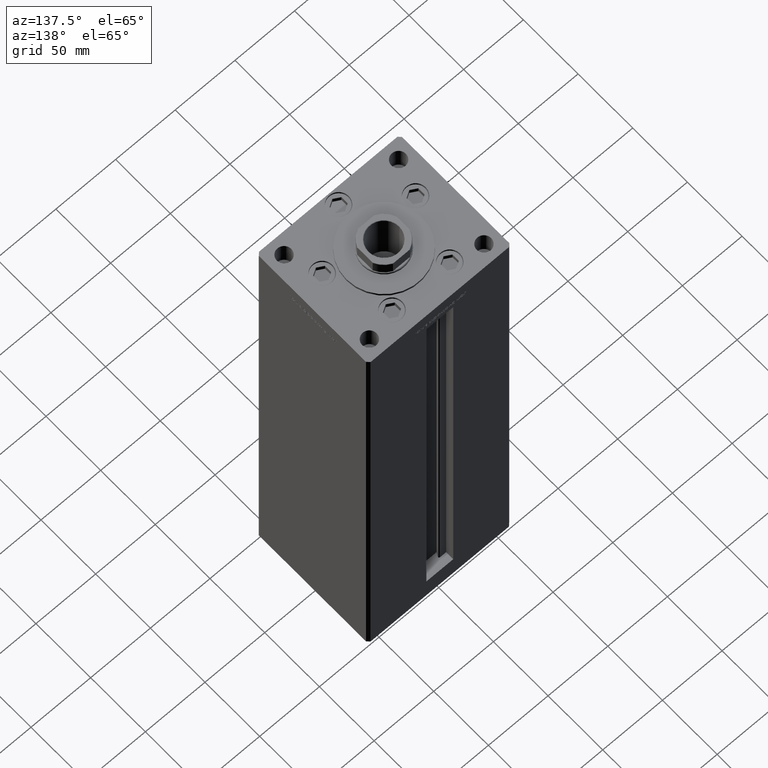
[diagram: clean part render]
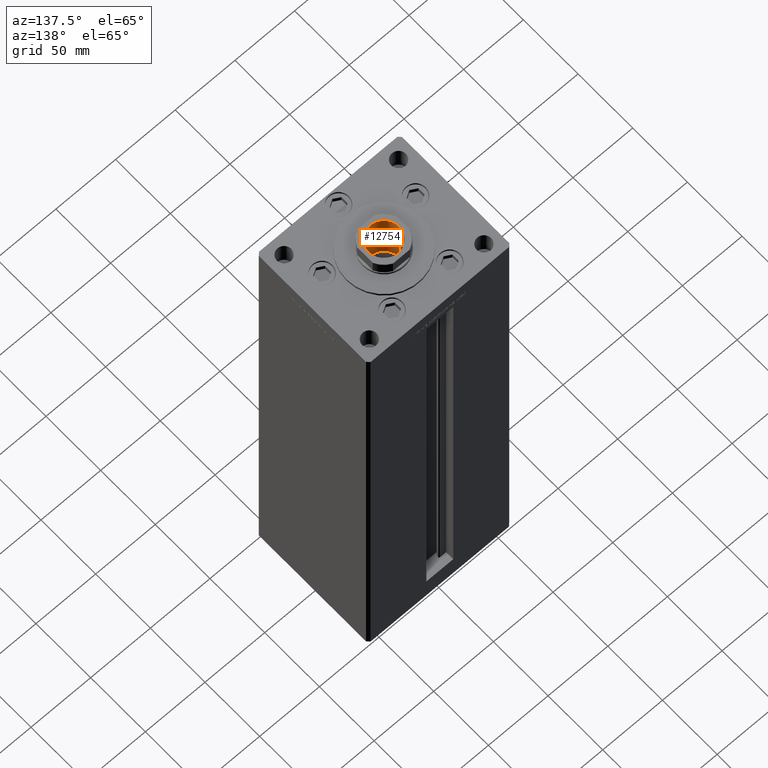
[diagram: same view with one face highlighted and labeled with its STEP entity id]
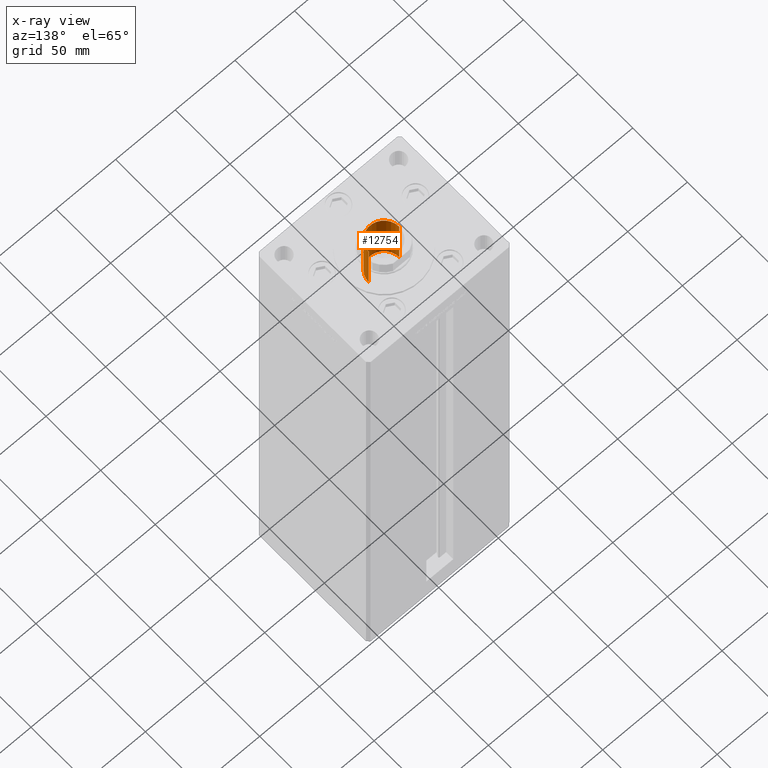
[diagram: x-ray of the same camera — body ghosted, the highlighted face saturated]
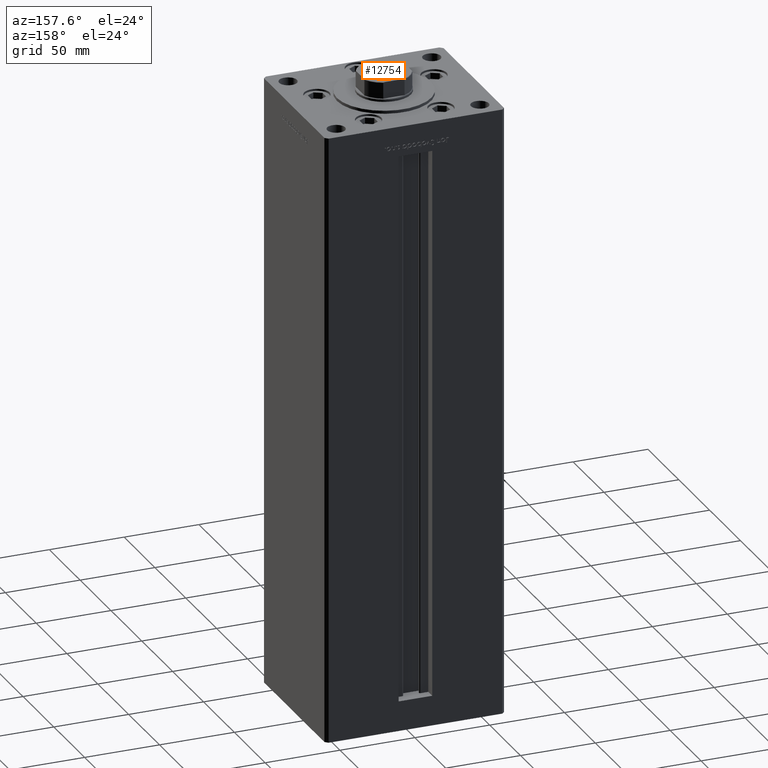
[diagram: same view with one face highlighted and labeled with its STEP entity id]
A machine part, auxiliary view. The second image highlights one B-rep face of the part: STEP entity #12754.
The next image is the same camera in x-ray: the body ghosted, the highlighted face saturated — about 0% of this face is hidden behind the body in this view.
A second angle (auxiliary view) of the same face is appended — the face is thin or edge-on in the first view.
In plain terms, the highlighted cylindrical surface (edge-blend (fillet) strip) has radius 12.75 mm, axis along (0, 0, 1).
Its self-contained STEP definition (entity closure, byte-faithful):
#1773 = CARTESIAN_POINT ( 'NONE',  ( -12.74999999999999467, 1.561424668912874519E-15, 389.2500000000000000 ) ) ;
#3592 = EDGE_CURVE ( 'NONE', #18716, #14563, #41292, .T. ) ;
#4118 = ORIENTED_EDGE ( 'NONE', *, *, #49170, .F. ) ;
#4862 = CARTESIAN_POINT ( 'NONE',  ( 0.000000000000000000, 0.000000000000000000, 389.2500000000000000 ) ) ;
#8751 = CARTESIAN_POINT ( 'NONE',  ( 0.000000000000000000, 0.000000000000000000, 388.9499999999999318 ) ) ;
#9095 = DIRECTION ( 'NONE',  ( -0.000000000000000000, -0.000000000000000000, 1.000000000000000000 ) ) ;
#9749 = AXIS2_PLACEMENT_3D ( 'NONE', #4862, #17439, #17941 ) ;
#11581 = ORIENTED_EDGE ( 'NONE', *, *, #20550, .T. ) ;
#12754 = ADVANCED_FACE ( 'NONE', ( #28943 ), #17691, .F. ) ;
#14563 = VERTEX_POINT ( 'NONE', #37156 ) ;
#15352 = AXIS2_PLACEMENT_3D ( 'NONE', #8751, #33095, #36785 ) ;
#17260 = EDGE_CURVE ( 'NONE', #29866, #19800, #51524, .T. ) ;
#17439 = DIRECTION ( 'NONE',  ( -0.000000000000000000, -0.000000000000000000, 1.000000000000000000 ) ) ;
#17691 = CYLINDRICAL_SURFACE ( 'NONE', #9749, 12.74999999999999467 ) ;
#17941 = DIRECTION ( 'NONE',  ( 1.000000000000000000, 0.000000000000000000, 0.000000000000000000 ) ) ;
#18716 = VERTEX_POINT ( 'NONE', #19625 ) ;
#19625 = CARTESIAN_POINT ( 'NONE',  ( -12.74999999999999467, 1.561424668912874519E-15, 388.9499999999999318 ) ) ;
#19800 = VERTEX_POINT ( 'NONE', #47809 ) ;
#20550 = EDGE_CURVE ( 'NONE', #29866, #18716, #25620, .T. ) ;
#21153 = DIRECTION ( 'NONE',  ( -0.000000000000000000, -0.000000000000000000, 1.000000000000000000 ) ) ;
#25620 = LINE ( 'NONE', #1773, #40809 ) ;
#28722 = CARTESIAN_POINT ( 'NONE',  ( 12.74999999999999467, 0.000000000000000000, 389.2500000000000000 ) ) ;
#28943 = FACE_OUTER_BOUND ( 'NONE', #30497, .T. ) ;
#28946 = AXIS2_PLACEMENT_3D ( 'NONE', #29518, #21153, #45491 ) ;
#29518 = CARTESIAN_POINT ( 'NONE',  ( 0.000000000000000000, 0.000000000000000000, 344.2500000000000000 ) ) ;
#29866 = VERTEX_POINT ( 'NONE', #46152 ) ;
#30497 = EDGE_LOOP ( 'NONE', ( #48021, #11581, #35561, #4118 ) ) ;
#32228 = DIRECTION ( 'NONE',  ( -0.000000000000000000, -0.000000000000000000, 1.000000000000000000 ) ) ;
#33095 = DIRECTION ( 'NONE',  ( 0.000000000000000000, 0.000000000000000000, 1.000000000000000000 ) ) ;
#35561 = ORIENTED_EDGE ( 'NONE', *, *, #3592, .T. ) ;
#36785 = DIRECTION ( 'NONE',  ( 1.000000000000000000, 0.000000000000000000, 0.000000000000000000 ) ) ;
#37156 = CARTESIAN_POINT ( 'NONE',  ( 12.74999999999999467, 0.000000000000000000, 388.9499999999999318 ) ) ;
#40809 = VECTOR ( 'NONE', #32228, 1000.000000000000000 ) ;
#41292 = CIRCLE ( 'NONE', #15352, 12.74999999999999467 ) ;
#43410 = VECTOR ( 'NONE', #9095, 1000.000000000000000 ) ;
#45491 = DIRECTION ( 'NONE',  ( 1.000000000000000000, 0.000000000000000000, 0.000000000000000000 ) ) ;
#46152 = CARTESIAN_POINT ( 'NONE',  ( -12.74999999999999112, 1.561424668912874125E-15, 344.2500000000000000 ) ) ;
#47809 = CARTESIAN_POINT ( 'NONE',  ( 12.74999999999999112, 0.000000000000000000, 344.2500000000000000 ) ) ;
#48021 = ORIENTED_EDGE ( 'NONE', *, *, #17260, .F. ) ;
#48638 = LINE ( 'NONE', #28722, #43410 ) ;
#49170 = EDGE_CURVE ( 'NONE', #19800, #14563, #48638, .T. ) ;
#51524 = CIRCLE ( 'NONE', #28946, 12.74999999999999112 ) ;